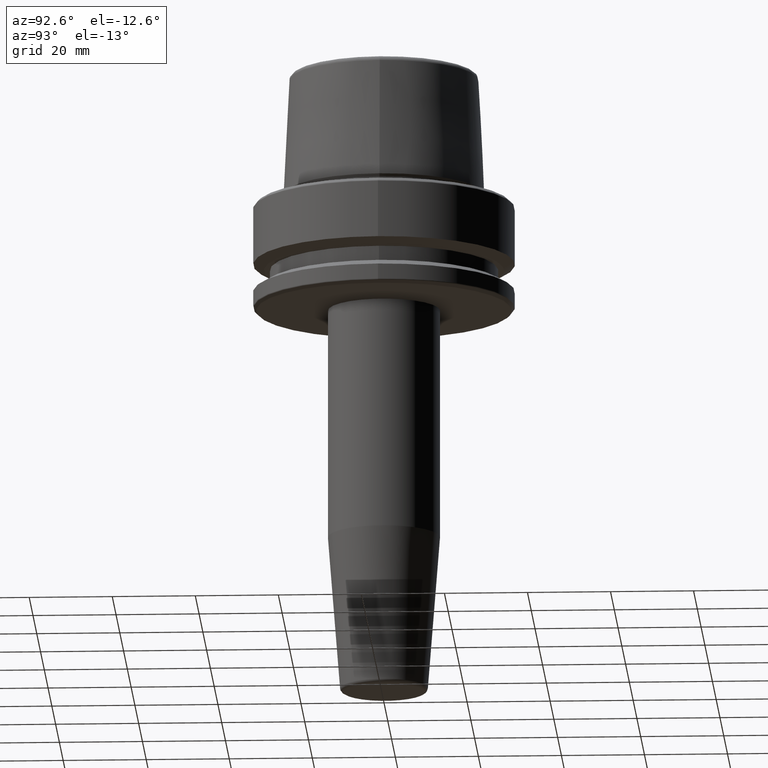
[diagram: clean part render]
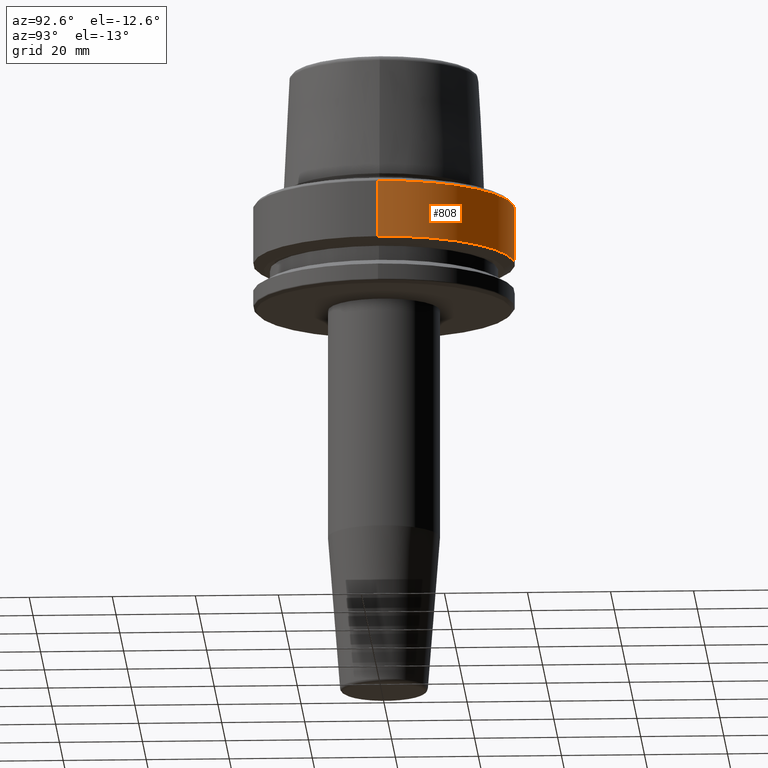
[diagram: same view with one face highlighted and labeled with its STEP entity id]
A machine part, auxiliary view. The second image highlights one B-rep face of the part: STEP entity #808.
In plain terms, the highlighted cylindrical surface (partial cylindrical patch) has radius 31.5 mm, axis along (-0, -0, 1).
Its self-contained STEP definition (entity closure, byte-faithful):
#18 = CARTESIAN_POINT ( 'NONE',  ( 31.50000000000000000, 0.0000000000000000000, 78.96908074195309300 ) ) ;
#101 = VERTEX_POINT ( 'NONE', #303 ) ;
#191 = DIRECTION ( 'NONE',  ( -0.0000000000000000000, -0.0000000000000000000, 1.000000000000000000 ) ) ;
#202 = CARTESIAN_POINT ( 'NONE',  ( -31.50000000000000000, 3.857637417314162700E-015, -0.9656854249492363700 ) ) ;
#232 = CYLINDRICAL_SURFACE ( 'NONE', #506, 31.50000000000000000 ) ;
#242 = VECTOR ( 'NONE', #885, 1000.000000000000000 ) ;
#286 = CARTESIAN_POINT ( 'NONE',  ( -31.50000000000000000, 3.857637417314162700E-015, 78.96908074195309300 ) ) ;
#303 = CARTESIAN_POINT ( 'NONE',  ( 31.50000000000000000, 0.0000000000000000000, -14.62250092524070100 ) ) ;
#312 = VERTEX_POINT ( 'NONE', #863 ) ;
#341 = LINE ( 'NONE', #18, #379 ) ;
#379 = VECTOR ( 'NONE', #1181, 1000.000000000000000 ) ;
#423 = EDGE_CURVE ( 'NONE', #974, #1104, #813, .T. ) ;
#493 = ORIENTED_EDGE ( 'NONE', *, *, #1161, .T. ) ;
#506 = AXIS2_PLACEMENT_3D ( 'NONE', #1147, #1248, #1049 ) ;
#519 = EDGE_CURVE ( 'NONE', #101, #312, #1218, .T. ) ;
#546 = DIRECTION ( 'NONE',  ( -0.0000000000000000000, -0.0000000000000000000, 1.000000000000000000 ) ) ;
#570 = ORIENTED_EDGE ( 'NONE', *, *, #1205, .F. ) ;
#675 = CARTESIAN_POINT ( 'NONE',  ( 31.50000000000000000, 0.0000000000000000000, -0.9656854249492363700 ) ) ;
#703 = AXIS2_PLACEMENT_3D ( 'NONE', #1136, #546, #1234 ) ;
#763 = CARTESIAN_POINT ( 'NONE',  ( 0.0000000000000000000, 0.0000000000000000000, -0.9656854249492363700 ) ) ;
#774 = FACE_OUTER_BOUND ( 'NONE', #972, .T. ) ;
#808 = ADVANCED_FACE ( 'NONE', ( #774 ), #232, .T. ) ;
#813 = CIRCLE ( 'NONE', #1133, 31.50000000000000000 ) ;
#863 = CARTESIAN_POINT ( 'NONE',  ( -31.50000000000000000, 3.857637417314162700E-015, -14.62250092524070100 ) ) ;
#872 = DIRECTION ( 'NONE',  ( 1.000000000000000000, 0.0000000000000000000, 0.0000000000000000000 ) ) ;
#885 = DIRECTION ( 'NONE',  ( -0.0000000000000000000, -0.0000000000000000000, 1.000000000000000000 ) ) ;
#940 = ORIENTED_EDGE ( 'NONE', *, *, #519, .T. ) ;
#960 = LINE ( 'NONE', #286, #242 ) ;
#972 = EDGE_LOOP ( 'NONE', ( #940, #493, #1023, #570 ) ) ;
#974 = VERTEX_POINT ( 'NONE', #675 ) ;
#1023 = ORIENTED_EDGE ( 'NONE', *, *, #423, .F. ) ;
#1049 = DIRECTION ( 'NONE',  ( 1.000000000000000000, 0.0000000000000000000, 0.0000000000000000000 ) ) ;
#1104 = VERTEX_POINT ( 'NONE', #202 ) ;
#1133 = AXIS2_PLACEMENT_3D ( 'NONE', #763, #191, #872 ) ;
#1136 = CARTESIAN_POINT ( 'NONE',  ( 0.0000000000000000000, 0.0000000000000000000, -14.62250092524070100 ) ) ;
#1147 = CARTESIAN_POINT ( 'NONE',  ( 0.0000000000000000000, 0.0000000000000000000, 78.96908074195309300 ) ) ;
#1161 = EDGE_CURVE ( 'NONE', #312, #1104, #960, .T. ) ;
#1181 = DIRECTION ( 'NONE',  ( -0.0000000000000000000, -0.0000000000000000000, 1.000000000000000000 ) ) ;
#1205 = EDGE_CURVE ( 'NONE', #101, #974, #341, .T. ) ;
#1218 = CIRCLE ( 'NONE', #703, 31.50000000000000000 ) ;
#1234 = DIRECTION ( 'NONE',  ( 1.000000000000000000, 0.0000000000000000000, 0.0000000000000000000 ) ) ;
#1248 = DIRECTION ( 'NONE',  ( -0.0000000000000000000, -0.0000000000000000000, 1.000000000000000000 ) ) ;